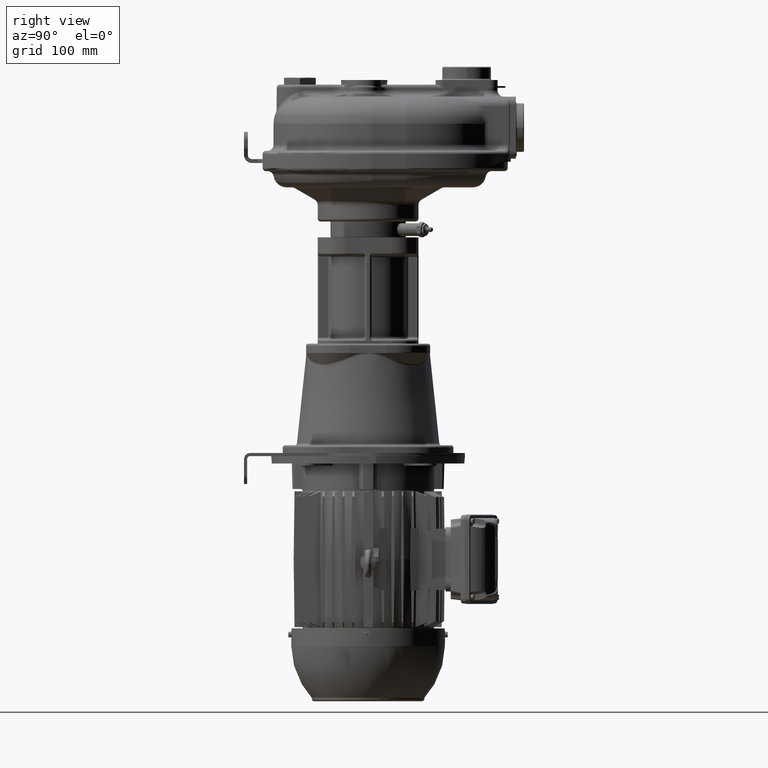
[diagram: clean part render]
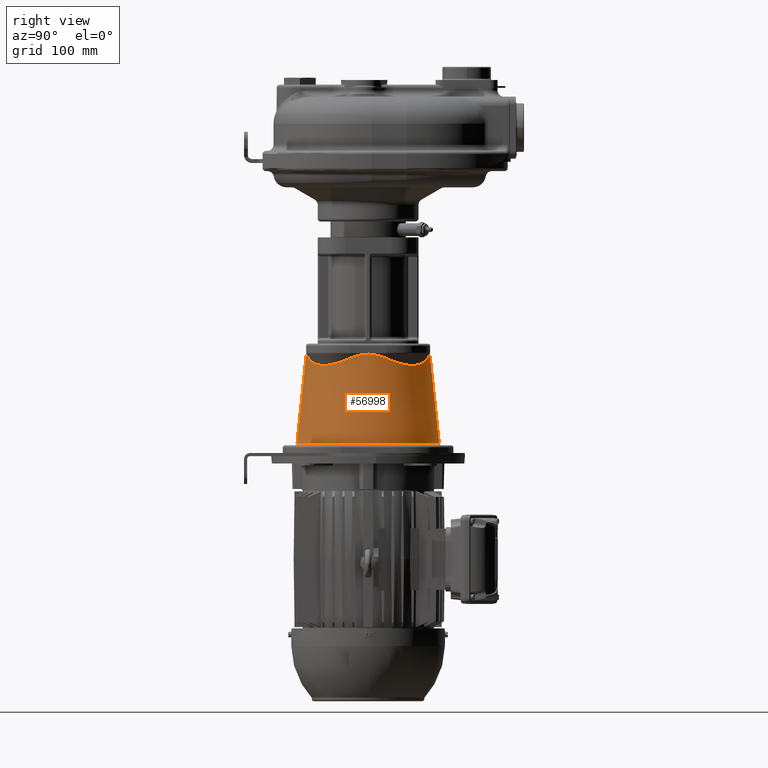
[diagram: same view with one face highlighted and labeled with its STEP entity id]
A machine part, right view. The second image highlights one B-rep face of the part: STEP entity #56998.
In plain terms, the highlighted conical surface has half-angle 6 deg.
Its self-contained STEP definition (entity closure, byte-faithful):
#5081=DIRECTION('',(0.E0,1.045284632720E-1,9.945218953678E-1));
#5082=VECTOR('',#5081,1.154727786723E2);
#5083=CARTESIAN_POINT('',(-2.736265074832E-14,-9.175620440373E1,
-3.678135853898E2));
#5084=LINE('',#5083,#5082);
#5085=CARTESIAN_POINT('',(9.448413889804E0,-7.923357628492E1,
-2.540097378124E2));
#5086=CARTESIAN_POINT('',(8.944865390985E0,-7.928397269742E1,
-2.539185644123E2));
#5087=CARTESIAN_POINT('',(7.981260820817E0,-7.937131314393E1,
-2.537495163003E2));
#5088=CARTESIAN_POINT('',(6.667328633573E0,-7.946941529494E1,
-2.535379740285E2));
#5089=CARTESIAN_POINT('',(5.484209309624E0,-7.954129156414E1,
-2.533680613803E2));
#5090=CARTESIAN_POINT('',(4.415192710407E0,-7.959335688235E1,
-2.532353220893E2));
#5091=CARTESIAN_POINT('',(3.434843384792E0,-7.963072188398E1,
-2.531341095028E2));
#5092=CARTESIAN_POINT('',(2.521193531791E0,-7.965686252494E1,
-2.530598937228E2));
#5093=CARTESIAN_POINT('',(1.654426537029E0,-7.967411147134E1,
-2.530092116402E2));
#5094=CARTESIAN_POINT('',(8.171873724441E-1,-7.968392373610E1,
-2.529797247375E2));
#5095=CARTESIAN_POINT('',(2.700712224523E-1,-7.968601232285E1,
-2.529733789962E2));
#5096=CARTESIAN_POINT('',(1.301772766961E-14,-7.968601229936E1,
-2.529733786812E2));
#5098=CARTESIAN_POINT('',(2.313970011329E1,-7.684120001109E1,
-2.583365913313E2));
#5099=CARTESIAN_POINT('',(2.274491774257E1,-7.694039552599E1,
-2.581572296166E2));
#5100=CARTESIAN_POINT('',(2.195793422996E1,-7.713274968255E1,
-2.578094110638E2));
#5101=CARTESIAN_POINT('',(2.078604550275E1,-7.740344576013E1,
-2.573199054467E2));
#5102=CARTESIAN_POINT('',(1.962221587909E1,-7.765689667984E1,
-2.568615607914E2));
#5103=CARTESIAN_POINT('',(1.846615493525E1,-7.789359695793E1,
-2.564334867523E2));
#5104=CARTESIAN_POINT('',(1.731743377084E1,-7.811403878783E1,
-2.560347978903E2));
#5105=CARTESIAN_POINT('',(1.617565291413E1,-7.831867240501E1,
-2.556646836034E2));
#5106=CARTESIAN_POINT('',(1.504040862414E1,-7.850791668127E1,
-2.553223900599E2));
#5107=CARTESIAN_POINT('',(1.391125331790E1,-7.868216465466E1,
-2.550072092538E2));
#5108=CARTESIAN_POINT('',(1.278783651194E1,-7.884176415054E1,
-2.547185150244E2));
#5109=CARTESIAN_POINT('',(1.166963719120E1,-7.898705715766E1,
-2.544556907804E2));
#5110=CARTESIAN_POINT('',(1.055628288678E1,-7.911833430233E1,
-2.542182137603E2));
#5111=CARTESIAN_POINT('',(9.817150191519E0,-7.919667194758E1,
-2.540764993014E2));
#5112=CARTESIAN_POINT('',(9.448413889804E0,-7.923357628492E1,
-2.540097378124E2));
#5114=CARTESIAN_POINT('',(7.684120001117E1,-2.313970011331E1,
-2.583365913312E2));
#5115=CARTESIAN_POINT('',(7.671329846715E1,-2.364872770324E1,
-2.585678582108E2));
#5116=CARTESIAN_POINT('',(7.644808856889E1,-2.465904318776E1,
-2.590212338262E2));
#5117=CARTESIAN_POINT('',(7.602317886080E1,-2.615072286287E1,
-2.596737208981E2));
#5118=CARTESIAN_POINT('',(7.557218928095E1,-2.761844882122E1,
-2.602987320697E2));
#5119=CARTESIAN_POINT('',(7.509614023977E1,-2.906200448181E1,
-2.608963573721E2));
#5120=CARTESIAN_POINT('',(7.459600681304E1,-3.048129067748E1,
-2.614667502744E2));
#5121=CARTESIAN_POINT('',(7.407270773547E1,-3.187632061585E1,
-2.620101204648E2));
#5122=CARTESIAN_POINT('',(7.352712576579E1,-3.324714664722E1,
-2.625267006174E2));
#5123=CARTESIAN_POINT('',(7.296008738007E1,-3.459390231722E1,
-2.630167604395E2));
#5124=CARTESIAN_POINT('',(7.237236871675E1,-3.591677240625E1,
-2.634805916936E2));
#5125=CARTESIAN_POINT('',(7.176469097011E1,-3.721599420204E1,
-2.639185058824E2));
#5126=CARTESIAN_POINT('',(7.113771941439E1,-3.849184986807E1,
-2.643308284641E2));
#5127=CARTESIAN_POINT('',(7.049206292482E1,-3.974465960543E1,
-2.647178937233E2));
#5128=CARTESIAN_POINT('',(6.982827329407E1,-4.097477626135E1,
-2.650800403005E2));
#5129=CARTESIAN_POINT('',(6.914684549857E1,-4.218257908532E1,
-2.654176067612E2));
#5130=CARTESIAN_POINT('',(6.844821813277E1,-4.336846821144E1,
-2.657309278259E2));
#5131=CARTESIAN_POINT('',(6.773277403344E1,-4.453285951642E1,
-2.660203305517E2));
#5132=CARTESIAN_POINT('',(6.700084130102E1,-4.567617957247E1,
-2.662861309772E2));
#5133=CARTESIAN_POINT('',(6.625269440606E1,-4.679886111102E1,
-2.665286311089E2));
#5134=CARTESIAN_POINT('',(6.548855547395E1,-4.790133875812E1,
-2.667481162456E2));
#5135=CARTESIAN_POINT('',(6.470859591998E1,-4.898404475591E1,
-2.669448524952E2));
#5136=CARTESIAN_POINT('',(6.391293794144E1,-5.004740542531E1,
-2.671190851279E2));
#5137=CARTESIAN_POINT('',(6.310165621555E1,-5.109183757549E1,
-2.672710364318E2));
#5138=CARTESIAN_POINT('',(6.227477955929E1,-5.211774534591E1,
-2.674009041146E2));
#5139=CARTESIAN_POINT('',(6.143229271398E1,-5.312551716319E1,
-2.675088599347E2));
#5140=CARTESIAN_POINT('',(6.057413817450E1,-5.411552290764E1,
-2.675950486067E2));
#5141=CARTESIAN_POINT('',(5.970021798385E1,-5.508811130914E1,
-2.676595868047E2));
#5142=CARTESIAN_POINT('',(5.881039597941E1,-5.604360713413E1,
-2.677025628502E2));
#5143=CARTESIAN_POINT('',(5.790449898615E1,-5.698230959273E1,
-2.677240360698E2));
#5144=CARTESIAN_POINT('',(5.698231915274E1,-5.790448959846E1,
-2.677240361829E2));
#5145=CARTESIAN_POINT('',(5.604361630074E1,-5.881038729733E1,
-2.677025631680E2));
#5146=CARTESIAN_POINT('',(5.508811990922E1,-5.970021012434E1,
-2.676595872899E2));
#5147=CARTESIAN_POINT('',(5.411553098727E1,-6.057413105063E1,
-2.675950492312E2));
#5148=CARTESIAN_POINT('',(5.312552469404E1,-6.143228630994E1,
-2.675088606703E2));
#5149=CARTESIAN_POINT('',(5.211775232259E1,-6.227477383883E1,
-2.674009049344E2));
#5150=CARTESIAN_POINT('',(5.109184399521E1,-6.310165114219E1,
-2.672710373099E2));
#5151=CARTESIAN_POINT('',(5.004741128615E1,-6.391293347929E1,
-2.671190860394E2));
#5152=CARTESIAN_POINT('',(4.898405006187E1,-6.470859203017E1,
-2.669448534167E2));
#5153=CARTESIAN_POINT('',(4.790134351692E1,-6.548855211665E1,
-2.667481171554E2));
#5154=CARTESIAN_POINT('',(4.679886533306E1,-6.625269154165E1,
-2.665286319882E2));
#5155=CARTESIAN_POINT('',(4.567618327236E1,-6.700083888911E1,
-2.662861318098E2));
#5156=CARTESIAN_POINT('',(4.453286271268E1,-6.773277203324E1,
-2.660203313235E2));
#5157=CARTESIAN_POINT('',(4.336847092579E1,-6.844821650384E1,
-2.657309285249E2));
#5158=CARTESIAN_POINT('',(4.218258134327E1,-6.914684420063E1,
-2.654176073780E2));
#5159=CARTESIAN_POINT('',(4.097477809267E1,-6.982827228705E1,
-2.650800408283E2));
#5160=CARTESIAN_POINT('',(3.974466104258E1,-7.049206216998E1,
-2.647178941585E2));
#5161=CARTESIAN_POINT('',(3.849185094631E1,-7.113771887448E1,
-2.643308288065E2));
#5162=CARTESIAN_POINT('',(3.721599495964E1,-7.176469060927E1,
-2.639185061340E2));
#5163=CARTESIAN_POINT('',(3.591677288446E1,-7.237236850079E1,
-2.634805918594E2));
#5164=CARTESIAN_POINT('',(3.459390255910E1,-7.296008727712E1,
-2.630167605270E2));
#5165=CARTESIAN_POINT('',(3.324714669808E1,-7.352712574623E1,
-2.625267006369E2));
#5166=CARTESIAN_POINT('',(3.187632052503E1,-7.407270777147E1,
-2.620101204304E2));
#5167=CARTESIAN_POINT('',(3.048129048801E1,-7.459600688252E1,
-2.614667501997E2));
#5168=CARTESIAN_POINT('',(2.906200424411E1,-7.509614032095E1,
-2.608963572754E2));
#5169=CARTESIAN_POINT('',(2.761844860110E1,-7.557218935072E1,
-2.602987319770E2));
#5170=CARTESIAN_POINT('',(2.615072266590E1,-7.602317891931E1,
-2.596737208132E2));
#5171=CARTESIAN_POINT('',(2.465904296929E1,-7.644808862801E1,
-2.590212337285E2));
#5172=CARTESIAN_POINT('',(2.364872761553E1,-7.671329848955E1,
-2.585678581720E2));
#5173=CARTESIAN_POINT('',(2.313970011329E1,-7.684120001109E1,
-2.583365913313E2));
#5175=CARTESIAN_POINT('',(7.923357628491E1,-9.448413889803E0,
-2.540097378124E2));
#5176=CARTESIAN_POINT('',(7.919667194939E1,-9.817150174092E0,
-2.540764992979E2));
#5177=CARTESIAN_POINT('',(7.911833430792E1,-1.055628283504E1,
-2.542182137504E2));
#5178=CARTESIAN_POINT('',(7.898705716949E1,-1.166963709381E1,
-2.544556907587E2));
#5179=CARTESIAN_POINT('',(7.884176417049E1,-1.278783636453E1,
-2.547185149885E2));
#5180=CARTESIAN_POINT('',(7.868216467532E1,-1.391125317953E1,
-2.550072092163E2));
#5181=CARTESIAN_POINT('',(7.850791669515E1,-1.504040853913E1,
-2.553223900350E2));
#5182=CARTESIAN_POINT('',(7.831867241037E1,-1.617565288499E1,
-2.556646835937E2));
#5183=CARTESIAN_POINT('',(7.811403877834E1,-1.731743382327E1,
-2.560347979074E2));
#5184=CARTESIAN_POINT('',(7.789359693780E1,-1.846615503854E1,
-2.564334867884E2));
#5185=CARTESIAN_POINT('',(7.765689663319E1,-1.962221610224E1,
-2.568615608762E2));
#5186=CARTESIAN_POINT('',(7.740344570125E1,-2.078604576442E1,
-2.573199055527E2));
#5187=CARTESIAN_POINT('',(7.713274964367E1,-2.195793439041E1,
-2.578094111348E2));
#5188=CARTESIAN_POINT('',(7.694039551072E1,-2.274491780505E1,
-2.581572296437E2));
#5189=CARTESIAN_POINT('',(7.684120001117E1,-2.313970011331E1,
-2.583365913312E2));
#5191=CARTESIAN_POINT('',(7.923357628456E1,9.448413889761E0,-2.540097378125E2));
#5192=CARTESIAN_POINT('',(7.928689449168E1,8.915671914473E0,-2.539132790041E2));
#5193=CARTESIAN_POINT('',(7.937848935146E1,7.898766737527E0,-2.537352309853E2));
#5194=CARTESIAN_POINT('',(7.947954581984E1,6.519889597098E0,-2.535151985128E2));
#5195=CARTESIAN_POINT('',(7.955200329106E1,5.288015927278E0,-2.533416776922E2));
#5196=CARTESIAN_POINT('',(7.960346977963E1,4.178723952031E0,-2.532085788158E2));
#5197=CARTESIAN_POINT('',(7.963953788033E1,3.162816631969E0,-2.531094773983E2));
#5198=CARTESIAN_POINT('',(7.966394465011E1,2.214508611126E0,-2.530392869282E2));
#5199=CARTESIAN_POINT('',(7.967907333241E1,1.311420479864E0,-2.529943743207E2));
#5200=CARTESIAN_POINT('',(7.968631609622E1,4.343102093793E-1,
-2.529724669255E2));
#5201=CARTESIAN_POINT('',(7.968631604881E1,-4.343219626601E-1,
-2.529724670813E2));
#5202=CARTESIAN_POINT('',(7.967907318655E1,-1.311432348763E0,
-2.529943747868E2));
#5203=CARTESIAN_POINT('',(7.966394439482E1,-2.214520738796E0,
-2.530392876879E2));
#5204=CARTESIAN_POINT('',(7.963953748288E1,-3.162829734414E0,
-2.531094785082E2));
#5205=CARTESIAN_POINT('',(7.960346919087E1,-4.178738330478E0,
-2.532085803802E2));
#5206=CARTESIAN_POINT('',(7.955200250754E1,-5.288031067863E0,
-2.533416796608E2));
#5207=CARTESIAN_POINT('',(7.947954466161E1,-6.519906846244E0,
-2.535152011394E2));
#5208=CARTESIAN_POINT('',(7.937848865107E1,-7.898774652268E0,
-2.537352323851E2));
#5209=CARTESIAN_POINT('',(7.928689419822E1,-8.915674843036E0,
-2.539132795150E2));
#5210=CARTESIAN_POINT('',(7.923357628491E1,-9.448413889803E0,
-2.540097378124E2));
#5212=CARTESIAN_POINT('',(7.684120001110E1,2.313970011329E1,-2.583365913313E2));
#5213=CARTESIAN_POINT('',(7.694039552557E1,2.274491774424E1,-2.581572296174E2));
#5214=CARTESIAN_POINT('',(7.713274968150E1,2.195793423435E1,-2.578094110657E2));
#5215=CARTESIAN_POINT('',(7.740344575874E1,2.078604550890E1,-2.573199054492E2));
#5216=CARTESIAN_POINT('',(7.765689667842E1,1.962221588581E1,-2.568615607940E2));
#5217=CARTESIAN_POINT('',(7.789359695642E1,1.846615494286E1,-2.564334867550E2));
#5218=CARTESIAN_POINT('',(7.811403878616E1,1.731743377977E1,-2.560347978933E2));
#5219=CARTESIAN_POINT('',(7.831867240334E1,1.617565292379E1,-2.556646836064E2));
#5220=CARTESIAN_POINT('',(7.850791667957E1,1.504040863473E1,-2.553223900630E2));
#5221=CARTESIAN_POINT('',(7.868216465296E1,1.391125332938E1,-2.550072092569E2));
#5222=CARTESIAN_POINT('',(7.884176414923E1,1.278783652166E1,-2.547185150268E2));
#5223=CARTESIAN_POINT('',(7.898705715608E1,1.166963720350E1,-2.544556907832E2));
#5224=CARTESIAN_POINT('',(7.911833430150E1,1.055628289595E1,-2.542182137621E2));
#5225=CARTESIAN_POINT('',(7.919667194685E1,9.817150195125E0,-2.540764993021E2));
#5226=CARTESIAN_POINT('',(7.923357628456E1,9.448413889761E0,-2.540097378125E2));
#5228=CARTESIAN_POINT('',(2.313970011332E1,7.684120001116E1,-2.583365913313E2));
#5229=CARTESIAN_POINT('',(2.364872770313E1,7.671329846717E1,-2.585678582108E2));
#5230=CARTESIAN_POINT('',(2.465904318751E1,7.644808856896E1,-2.590212338261E2));
#5231=CARTESIAN_POINT('',(2.615072286275E1,7.602317886084E1,-2.596737208980E2));
#5232=CARTESIAN_POINT('',(2.761844882113E1,7.557218928098E1,-2.602987320697E2));
#5233=CARTESIAN_POINT('',(2.906200448169E1,7.509614023981E1,-2.608963573720E2));
#5234=CARTESIAN_POINT('',(3.048129067736E1,7.459600681308E1,-2.614667502743E2));
#5235=CARTESIAN_POINT('',(3.187632061581E1,7.407270773549E1,-2.620101204648E2));
#5236=CARTESIAN_POINT('',(3.324714664729E1,7.352712576576E1,-2.625267006174E2));
#5237=CARTESIAN_POINT('',(3.459390231717E1,7.296008738009E1,-2.630167604395E2));
#5238=CARTESIAN_POINT('',(3.591677240626E1,7.237236871675E1,-2.634805916936E2));
#5239=CARTESIAN_POINT('',(3.721599420201E1,7.176469097012E1,-2.639185058824E2));
#5240=CARTESIAN_POINT('',(3.849184986789E1,7.113771941448E1,-2.643308284641E2));
#5241=CARTESIAN_POINT('',(3.974465960526E1,7.049206292491E1,-2.647178937233E2));
#5242=CARTESIAN_POINT('',(4.097477626129E1,6.982827329410E1,-2.650800403004E2));
#5243=CARTESIAN_POINT('',(4.218257908510E1,6.914684549869E1,-2.654176067611E2));
#5244=CARTESIAN_POINT('',(4.336846821143E1,6.844821813278E1,-2.657309278259E2));
#5245=CARTESIAN_POINT('',(4.453285951638E1,6.773277403346E1,-2.660203305517E2));
#5246=CARTESIAN_POINT('',(4.567617957217E1,6.700084130122E1,-2.662861309771E2));
#5247=CARTESIAN_POINT('',(4.679886111074E1,6.625269440626E1,-2.665286311088E2));
#5248=CARTESIAN_POINT('',(4.790133875808E1,6.548855547397E1,-2.667481162456E2));
#5249=CARTESIAN_POINT('',(4.898404475552E1,6.470859592027E1,-2.669448524951E2));
#5250=CARTESIAN_POINT('',(5.004740542517E1,6.391293794155E1,-2.671190851279E2));
#5251=CARTESIAN_POINT('',(5.109183757555E1,6.310165621551E1,-2.672710364318E2));
#5252=CARTESIAN_POINT('',(5.211774534567E1,6.227477955948E1,-2.674009041146E2));
#5253=CARTESIAN_POINT('',(5.312551716276E1,6.143229271435E1,-2.675088599347E2));
#5254=CARTESIAN_POINT('',(5.411552290756E1,6.057413817457E1,-2.675950486067E2));
#5255=CARTESIAN_POINT('',(5.508811130884E1,5.970021798411E1,-2.676595868047E2));
#5256=CARTESIAN_POINT('',(5.604360713363E1,5.881039597988E1,-2.677025628502E2));
#5257=CARTESIAN_POINT('',(5.698230959271E1,5.790449898617E1,-2.677240360698E2));
#5258=CARTESIAN_POINT('',(5.790448959845E1,5.698231915274E1,-2.677240361829E2));
#5259=CARTESIAN_POINT('',(5.881038729688E1,5.604361630120E1,-2.677025631680E2));
#5260=CARTESIAN_POINT('',(5.970021012410E1,5.508811990948E1,-2.676595872899E2));
#5261=CARTESIAN_POINT('',(6.057413105059E1,5.411553098731E1,-2.675950492312E2));
#5262=CARTESIAN_POINT('',(6.143228630959E1,5.312552469444E1,-2.675088606704E2));
#5263=CARTESIAN_POINT('',(6.227477383866E1,5.211775232281E1,-2.674009049344E2));
#5264=CARTESIAN_POINT('',(6.310165114225E1,5.109184399514E1,-2.672710373099E2));
#5265=CARTESIAN_POINT('',(6.391293347919E1,5.004741128628E1,-2.671190860394E2));
#5266=CARTESIAN_POINT('',(6.470859202989E1,4.898405006224E1,-2.669448534168E2));
#5267=CARTESIAN_POINT('',(6.548855211663E1,4.790134351694E1,-2.667481171554E2));
#5268=CARTESIAN_POINT('',(6.625269154146E1,4.679886533333E1,-2.665286319882E2));
#5269=CARTESIAN_POINT('',(6.700083888893E1,4.567618327264E1,-2.662861318099E2));
#5270=CARTESIAN_POINT('',(6.773277203322E1,4.453286271271E1,-2.660203313235E2));
#5271=CARTESIAN_POINT('',(6.844821650383E1,4.336847092580E1,-2.657309285249E2));
#5272=CARTESIAN_POINT('',(6.914684420051E1,4.218258134349E1,-2.654176073780E2));
#5273=CARTESIAN_POINT('',(6.982827228701E1,4.097477809273E1,-2.650800408283E2));
#5274=CARTESIAN_POINT('',(7.049206216989E1,3.974466104274E1,-2.647178941586E2));
#5275=CARTESIAN_POINT('',(7.113771887439E1,3.849185094648E1,-2.643308288065E2));
#5276=CARTESIAN_POINT('',(7.176469060926E1,3.721599495967E1,-2.639185061340E2));
#5277=CARTESIAN_POINT('',(7.237236850079E1,3.591677288446E1,-2.634805918594E2));
#5278=CARTESIAN_POINT('',(7.296008727711E1,3.459390255915E1,-2.630167605270E2));
#5279=CARTESIAN_POINT('',(7.352712574626E1,3.324714669801E1,-2.625267006369E2));
#5280=CARTESIAN_POINT('',(7.407270777146E1,3.187632052506E1,-2.620101204304E2));
#5281=CARTESIAN_POINT('',(7.459600688248E1,3.048129048813E1,-2.614667501997E2));
#5282=CARTESIAN_POINT('',(7.509614032090E1,2.906200424423E1,-2.608963572754E2));
#5283=CARTESIAN_POINT('',(7.557218935069E1,2.761844860119E1,-2.602987319770E2));
#5284=CARTESIAN_POINT('',(7.602317891927E1,2.615072266603E1,-2.596737208132E2));
#5285=CARTESIAN_POINT('',(7.644808862793E1,2.465904296958E1,-2.590212337287E2));
#5286=CARTESIAN_POINT('',(7.671329848952E1,2.364872761566E1,-2.585678581721E2));
#5287=CARTESIAN_POINT('',(7.684120001110E1,2.313970011329E1,-2.583365913313E2));
#5289=CARTESIAN_POINT('',(9.448413889852E0,7.923357628533E1,-2.540097378124E2));
#5290=CARTESIAN_POINT('',(9.817150170483E0,7.919667195017E1,-2.540764992972E2));
#5291=CARTESIAN_POINT('',(1.055628282585E1,7.911833430873E1,-2.542182137486E2));
#5292=CARTESIAN_POINT('',(1.166963708150E1,7.898705717107E1,-2.544556907559E2));
#5293=CARTESIAN_POINT('',(1.278783635483E1,7.884176417180E1,-2.547185149861E2));
#5294=CARTESIAN_POINT('',(1.391125316806E1,7.868216467702E1,-2.550072092133E2));
#5295=CARTESIAN_POINT('',(1.504040852854E1,7.850791669686E1,-2.553223900319E2));
#5296=CARTESIAN_POINT('',(1.617565287534E1,7.831867241204E1,-2.556646835907E2));
#5297=CARTESIAN_POINT('',(1.731743381434E1,7.811403878E1,-2.560347979044E2));
#5298=CARTESIAN_POINT('',(1.846615503093E1,7.789359693931E1,-2.564334867857E2));
#5299=CARTESIAN_POINT('',(1.962221609552E1,7.765689663461E1,-2.568615608736E2));
#5300=CARTESIAN_POINT('',(2.078604575826E1,7.740344570264E1,-2.573199055501E2));
#5301=CARTESIAN_POINT('',(2.195793438600E1,7.713274964473E1,-2.578094111329E2));
#5302=CARTESIAN_POINT('',(2.274491780337E1,7.694039551115E1,-2.581572296430E2));
#5303=CARTESIAN_POINT('',(2.313970011332E1,7.684120001116E1,-2.583365913313E2));
#5305=CARTESIAN_POINT('',(0.E0,7.968601229936E1,-2.529733786812E2));
#5306=CARTESIAN_POINT('',(2.700761855395E-1,7.968601233353E1,
-2.529733791131E2));
#5307=CARTESIAN_POINT('',(8.172017403868E-1,7.968392370900E1,
-2.529797247106E2));
#5308=CARTESIAN_POINT('',(1.654480761686E0,7.967411065917E1,-2.530092140426E2));
#5309=CARTESIAN_POINT('',(2.521231413649E0,7.965686150717E1,-2.530598966211E2));
#5310=CARTESIAN_POINT('',(3.434851743566E0,7.963072153949E1,-2.531341104390E2));
#5311=CARTESIAN_POINT('',(4.415191703793E0,7.959335692413E1,-2.532353219932E2));
#5312=CARTESIAN_POINT('',(5.484210444752E0,7.954129150888E1,-2.533680615098E2));
#5313=CARTESIAN_POINT('',(6.667331703839E0,7.946941510569E1,-2.535379744460E2));
#5314=CARTESIAN_POINT('',(7.981268710267E0,7.937131249330E1,-2.537495176348E2));
#5315=CARTESIAN_POINT('',(8.944868764928E0,7.928397235928E1,-2.539185650008E2));
#5316=CARTESIAN_POINT('',(9.448413889852E0,7.923357628533E1,-2.540097378124E2));
#5318=DIRECTION('',(0.E0,-1.045284632720E-1,9.945218953678E-1));
#5319=VECTOR('',#5318,1.154727786723E2);
#5320=CARTESIAN_POINT('',(1.012385620580E-14,9.175620440373E1,
-3.678135853898E2));
#5321=LINE('',#5320,#5319);
#5322=CARTESIAN_POINT('',(0.E0,0.E0,-3.678135853898E2));
#5323=DIRECTION('',(0.E0,0.E0,1.E0));
#5324=DIRECTION('',(0.E0,-1.E0,0.E0));
#5325=AXIS2_PLACEMENT_3D('',#5322,#5323,#5324);
#48602=CARTESIAN_POINT('',(0.E0,9.175620440373E1,-3.678135853898E2));
#48603=VERTEX_POINT('',#48602);
#48706=VERTEX_POINT('',#5305);
#48707=VERTEX_POINT('',#5316);
#48709=VERTEX_POINT('',#5303);
#48711=VERTEX_POINT('',#5287);
#48713=VERTEX_POINT('',#5226);
#48715=VERTEX_POINT('',#5210);
#48717=VERTEX_POINT('',#5189);
#48719=VERTEX_POINT('',#5173);
#48721=VERTEX_POINT('',#5112);
#48723=VERTEX_POINT('',#5096);
#48736=CARTESIAN_POINT('',(1.123690420249E-14,-9.175620440373E1,
-3.678135853898E2));
#48737=VERTEX_POINT('',#48736);
#56969=CARTESIAN_POINT('',(0.E0,0.E0,-3.103930569849E2));
#56970=DIRECTION('',(0.E0,0.E0,-1.E0));
#56971=DIRECTION('',(0.E0,-1.E0,0.E0));
#56972=AXIS2_PLACEMENT_3D('',#56969,#56970,#56971);
#56973=CONICAL_SURFACE('',#56972,8.572106367719E1,6.E0);
#56975=ORIENTED_EDGE('',*,*,#56974,.F.);
#56976=ORIENTED_EDGE('',*,*,#56943,.T.);
#56978=ORIENTED_EDGE('',*,*,#56977,.F.);
#56980=ORIENTED_EDGE('',*,*,#56979,.F.);
#56982=ORIENTED_EDGE('',*,*,#56981,.F.);
#56984=ORIENTED_EDGE('',*,*,#56983,.F.);
#56986=ORIENTED_EDGE('',*,*,#56985,.F.);
#56988=ORIENTED_EDGE('',*,*,#56987,.F.);
#56990=ORIENTED_EDGE('',*,*,#56989,.F.);
#56992=ORIENTED_EDGE('',*,*,#56991,.F.);
#56994=ORIENTED_EDGE('',*,*,#56993,.F.);
#56995=ORIENTED_EDGE('',*,*,#56946,.F.);
#56996=EDGE_LOOP('',(#56975,#56976,#56978,#56980,#56982,#56984,#56986,#56988,
#56990,#56992,#56994,#56995));
#56997=FACE_OUTER_BOUND('',#56996,.F.);
#56998=ADVANCED_FACE('',(#56997),#56973,.T.);
#5097=B_SPLINE_CURVE_WITH_KNOTS('',3,(#5085,#5086,#5087,#5088,#5089,#5090,#5091,
#5092,#5093,#5094,#5095,#5096),.UNSPECIFIED.,.F.,.F.,(4,1,1,1,1,1,1,1,1,4),
(0.E0,1.111111111111E-1,2.222222222222E-1,3.333333333333E-1,4.444444444444E-1,
5.555555555556E-1,6.666666666667E-1,7.777777777778E-1,8.888888888889E-1,1.E0),
.UNSPECIFIED.);
#5113=B_SPLINE_CURVE_WITH_KNOTS('',3,(#5098,#5099,#5100,#5101,#5102,#5103,#5104,
#5105,#5106,#5107,#5108,#5109,#5110,#5111,#5112),.UNSPECIFIED.,.F.,.F.,(4,1,1,1,
1,1,1,1,1,1,1,1,4),(0.E0,8.333333333333E-2,1.666666666667E-1,2.5E-1,
3.333333333333E-1,4.166666666667E-1,5.E-1,5.833333333333E-1,6.666666666667E-1,
7.5E-1,8.333333333333E-1,9.166666666667E-1,1.E0),.UNSPECIFIED.);
#5174=B_SPLINE_CURVE_WITH_KNOTS('',3,(#5114,#5115,#5116,#5117,#5118,#5119,#5120,
#5121,#5122,#5123,#5124,#5125,#5126,#5127,#5128,#5129,#5130,#5131,#5132,#5133,
#5134,#5135,#5136,#5137,#5138,#5139,#5140,#5141,#5142,#5143,#5144,#5145,#5146,
#5147,#5148,#5149,#5150,#5151,#5152,#5153,#5154,#5155,#5156,#5157,#5158,#5159,
#5160,#5161,#5162,#5163,#5164,#5165,#5166,#5167,#5168,#5169,#5170,#5171,#5172,
#5173),.UNSPECIFIED.,.F.,.F.,(4,1,1,1,1,1,1,1,1,1,1,1,1,1,1,1,1,1,1,1,1,1,1,1,1,
1,1,1,1,1,1,1,1,1,1,1,1,1,1,1,1,1,1,1,1,1,1,1,1,1,1,1,1,1,1,1,1,4),(0.E0,
1.754385964912E-2,3.508771929825E-2,5.263157894737E-2,7.017543859649E-2,
8.771929824561E-2,1.052631578947E-1,1.228070175439E-1,1.403508771930E-1,
1.578947368421E-1,1.754385964912E-1,1.929824561404E-1,2.105263157895E-1,
2.280701754386E-1,2.456140350877E-1,2.631578947368E-1,2.807017543860E-1,
2.982456140351E-1,3.157894736842E-1,3.333333333333E-1,3.508771929825E-1,
3.684210526316E-1,3.859649122807E-1,4.035087719298E-1,4.210526315789E-1,
4.385964912281E-1,4.561403508772E-1,4.736842105263E-1,4.912280701754E-1,
5.087719298246E-1,5.263157894737E-1,5.438596491228E-1,5.614035087719E-1,
5.789473684211E-1,5.964912280702E-1,6.140350877193E-1,6.315789473684E-1,
6.491228070175E-1,6.666666666667E-1,6.842105263158E-1,7.017543859649E-1,
7.192982456140E-1,7.368421052632E-1,7.543859649123E-1,7.719298245614E-1,
7.894736842105E-1,8.070175438596E-1,8.245614035088E-1,8.421052631579E-1,
8.596491228070E-1,8.771929824561E-1,8.947368421053E-1,9.122807017544E-1,
9.298245614035E-1,9.473684210526E-1,9.649122807018E-1,9.824561403509E-1,1.E0),
.UNSPECIFIED.);
#5190=B_SPLINE_CURVE_WITH_KNOTS('',3,(#5175,#5176,#5177,#5178,#5179,#5180,#5181,
#5182,#5183,#5184,#5185,#5186,#5187,#5188,#5189),.UNSPECIFIED.,.F.,.F.,(4,1,1,1,
1,1,1,1,1,1,1,1,4),(0.E0,8.333333333333E-2,1.666666666667E-1,2.5E-1,
3.333333333333E-1,4.166666666667E-1,5.E-1,5.833333333333E-1,6.666666666667E-1,
7.5E-1,8.333333333333E-1,9.166666666667E-1,1.E0),.UNSPECIFIED.);
#5211=B_SPLINE_CURVE_WITH_KNOTS('',3,(#5191,#5192,#5193,#5194,#5195,#5196,#5197,
#5198,#5199,#5200,#5201,#5202,#5203,#5204,#5205,#5206,#5207,#5208,#5209,#5210),
.UNSPECIFIED.,.F.,.F.,(4,1,1,1,1,1,1,1,1,1,1,1,1,1,1,1,1,4),(0.E0,
5.882352941176E-2,1.176470588235E-1,1.764705882353E-1,2.352941176471E-1,
2.941176470588E-1,3.529411764706E-1,4.117647058824E-1,4.705882352941E-1,
5.294117647059E-1,5.882352941176E-1,6.470588235294E-1,7.058823529412E-1,
7.647058823529E-1,8.235294117647E-1,8.823529411765E-1,9.411764705882E-1,1.E0),
.UNSPECIFIED.);
#5227=B_SPLINE_CURVE_WITH_KNOTS('',3,(#5212,#5213,#5214,#5215,#5216,#5217,#5218,
#5219,#5220,#5221,#5222,#5223,#5224,#5225,#5226),.UNSPECIFIED.,.F.,.F.,(4,1,1,1,
1,1,1,1,1,1,1,1,4),(0.E0,8.333333333333E-2,1.666666666667E-1,2.5E-1,
3.333333333333E-1,4.166666666667E-1,5.E-1,5.833333333333E-1,6.666666666667E-1,
7.5E-1,8.333333333333E-1,9.166666666667E-1,1.E0),.UNSPECIFIED.);
#5288=B_SPLINE_CURVE_WITH_KNOTS('',3,(#5228,#5229,#5230,#5231,#5232,#5233,#5234,
#5235,#5236,#5237,#5238,#5239,#5240,#5241,#5242,#5243,#5244,#5245,#5246,#5247,
#5248,#5249,#5250,#5251,#5252,#5253,#5254,#5255,#5256,#5257,#5258,#5259,#5260,
#5261,#5262,#5263,#5264,#5265,#5266,#5267,#5268,#5269,#5270,#5271,#5272,#5273,
#5274,#5275,#5276,#5277,#5278,#5279,#5280,#5281,#5282,#5283,#5284,#5285,#5286,
#5287),.UNSPECIFIED.,.F.,.F.,(4,1,1,1,1,1,1,1,1,1,1,1,1,1,1,1,1,1,1,1,1,1,1,1,1,
1,1,1,1,1,1,1,1,1,1,1,1,1,1,1,1,1,1,1,1,1,1,1,1,1,1,1,1,1,1,1,1,4),(0.E0,
1.754385964912E-2,3.508771929825E-2,5.263157894737E-2,7.017543859649E-2,
8.771929824561E-2,1.052631578947E-1,1.228070175439E-1,1.403508771930E-1,
1.578947368421E-1,1.754385964912E-1,1.929824561404E-1,2.105263157895E-1,
2.280701754386E-1,2.456140350877E-1,2.631578947368E-1,2.807017543860E-1,
2.982456140351E-1,3.157894736842E-1,3.333333333333E-1,3.508771929825E-1,
3.684210526316E-1,3.859649122807E-1,4.035087719298E-1,4.210526315789E-1,
4.385964912281E-1,4.561403508772E-1,4.736842105263E-1,4.912280701754E-1,
5.087719298246E-1,5.263157894737E-1,5.438596491228E-1,5.614035087719E-1,
5.789473684211E-1,5.964912280702E-1,6.140350877193E-1,6.315789473684E-1,
6.491228070175E-1,6.666666666667E-1,6.842105263158E-1,7.017543859649E-1,
7.192982456140E-1,7.368421052632E-1,7.543859649123E-1,7.719298245614E-1,
7.894736842105E-1,8.070175438596E-1,8.245614035088E-1,8.421052631579E-1,
8.596491228070E-1,8.771929824561E-1,8.947368421053E-1,9.122807017544E-1,
9.298245614035E-1,9.473684210526E-1,9.649122807018E-1,9.824561403509E-1,1.E0),
.UNSPECIFIED.);
#5304=B_SPLINE_CURVE_WITH_KNOTS('',3,(#5289,#5290,#5291,#5292,#5293,#5294,#5295,
#5296,#5297,#5298,#5299,#5300,#5301,#5302,#5303),.UNSPECIFIED.,.F.,.F.,(4,1,1,1,
1,1,1,1,1,1,1,1,4),(0.E0,8.333333333333E-2,1.666666666667E-1,2.5E-1,
3.333333333333E-1,4.166666666667E-1,5.E-1,5.833333333333E-1,6.666666666667E-1,
7.5E-1,8.333333333333E-1,9.166666666667E-1,1.E0),.UNSPECIFIED.);
#5317=B_SPLINE_CURVE_WITH_KNOTS('',3,(#5305,#5306,#5307,#5308,#5309,#5310,#5311,
#5312,#5313,#5314,#5315,#5316),.UNSPECIFIED.,.F.,.F.,(4,1,1,1,1,1,1,1,1,4),
(0.E0,1.111111111111E-1,2.222222222222E-1,3.333333333333E-1,4.444444444444E-1,
5.555555555556E-1,6.666666666667E-1,7.777777777778E-1,8.888888888889E-1,1.E0),
.UNSPECIFIED.);
#5326=CIRCLE('',#5325,9.175620440373E1);
#56943=EDGE_CURVE('',#48737,#48723,#5084,.T.);
#56946=EDGE_CURVE('',#48603,#48706,#5321,.T.);
#56974=EDGE_CURVE('',#48737,#48603,#5326,.T.);
#56977=EDGE_CURVE('',#48721,#48723,#5097,.T.);
#56979=EDGE_CURVE('',#48719,#48721,#5113,.T.);
#56981=EDGE_CURVE('',#48717,#48719,#5174,.T.);
#56983=EDGE_CURVE('',#48715,#48717,#5190,.T.);
#56985=EDGE_CURVE('',#48713,#48715,#5211,.T.);
#56987=EDGE_CURVE('',#48711,#48713,#5227,.T.);
#56989=EDGE_CURVE('',#48709,#48711,#5288,.T.);
#56991=EDGE_CURVE('',#48707,#48709,#5304,.T.);
#56993=EDGE_CURVE('',#48706,#48707,#5317,.T.);